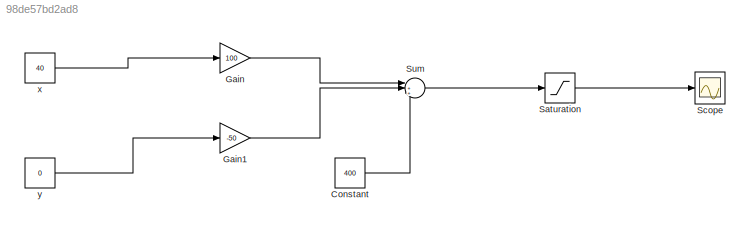
MODEL slx_98de57bd2ad8
KIND model
CONFIG AbsTol = auto
CONFIG EnableMultiTasking = off
CONFIG FixedStep = auto
CONFIG MaxStep = auto
CONFIG MinStep = auto
CONFIG RelTol = 1e-3
CONFIG SampleTimeConstraint = Unconstrained
CONFIG SolverName = VariableStepAuto
CONFIG StartTime = 0.0
CONFIG StopTime = 10.0
BLOCK [Constant] Constant
  Value = 400
BLOCK [Gain] Gain
  Gain = 100
BLOCK [Gain] Gain1
  Gain = -50
BLOCK [Saturate] Saturation
  LowerLimit = 100
  UpperLimit = 3000
BLOCK [Scope] Scope
  ActiveDisplayYMaximum = 4000
  ActiveDisplayYMinimum = 2000
  Floating = off
  GraphicalSettings = {"Style":{"BackgroundColor":[0.12941176470588237,0.12941176470588237,0.12941176470588237],"AxesColor":[0.07058823529411765,0.07058823529411765,0.07058823529411765],"LabelsColor":[0.8509803921568627,0.8509803921568627,0.8509803921568627],"PreserveColors":false,"Visible":[true],"LineStyle":["-"],"LineWidth":[1.5],"BarWidth":[0.9],"LineColor":["auto"],"LineFaceAlpha":[1],"LineEdgeAlpha":[1],"Marker":...<+1921ch>
  MultipleDisplayCache = [{"MaxYLimMag":4000,"MaxYLimReal":4000,"MinYLimMag":2000,"MinYLimReal":2000,"PlotAsMagnitudePhase":false,"ShowGrid":true,"ShowLegend":false,"Title":"%<SignalLabel>","YLabel":""}]
  NumInputPorts = 1
  ScopeFrameLocation = window
  WasSavedAsWebScope = on
  WindowPosition = [786.000000,266.000000,560.000000,420.000000,]
BLOCK [Sum] Sum
  Inputs = |+++
BLOCK [Constant] x
  Value = 40
BLOCK [Constant] y
  Value = 0
LINE Constant:1 -> Sum:3
LINE Gain1:1 -> Sum:2
LINE Gain:1 -> Sum:1
LINE Saturation:1 -> Scope:1
LINE Sum:1 -> Saturation:1
LINE x:1 -> Gain:1
LINE y:1 -> Gain1:1
